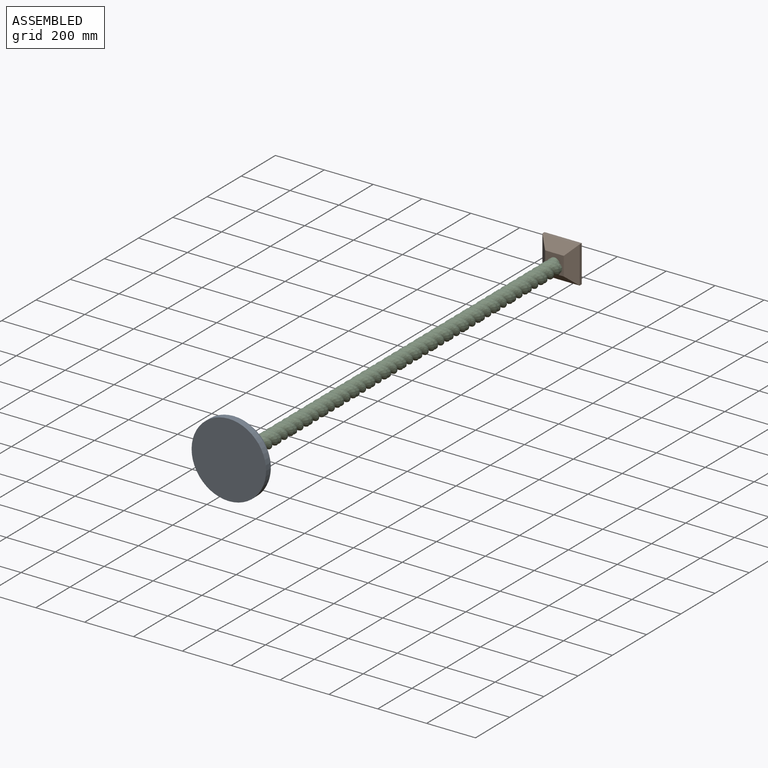
[diagram: assembled view]
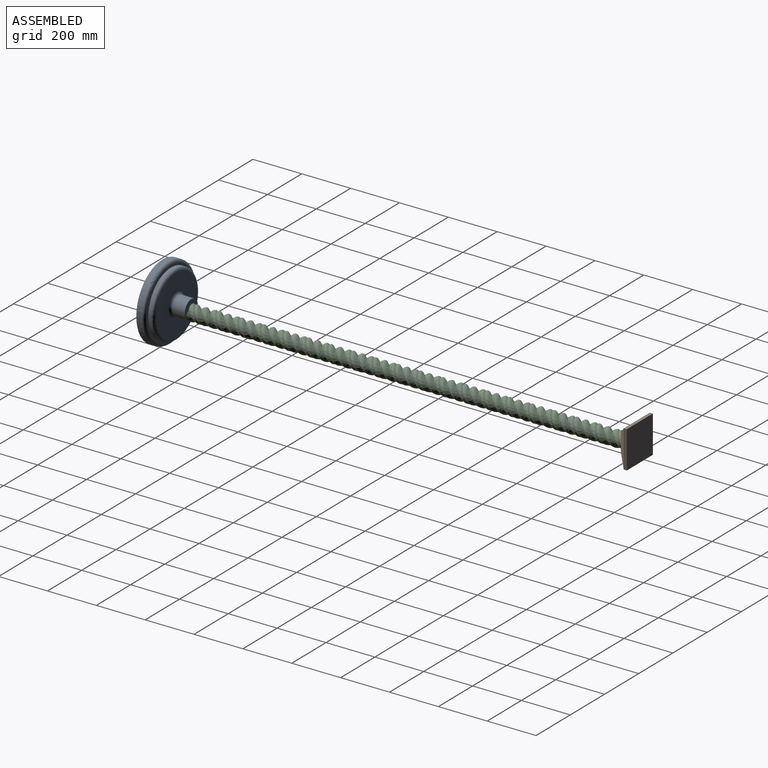
[diagram: assembled view, second angle]
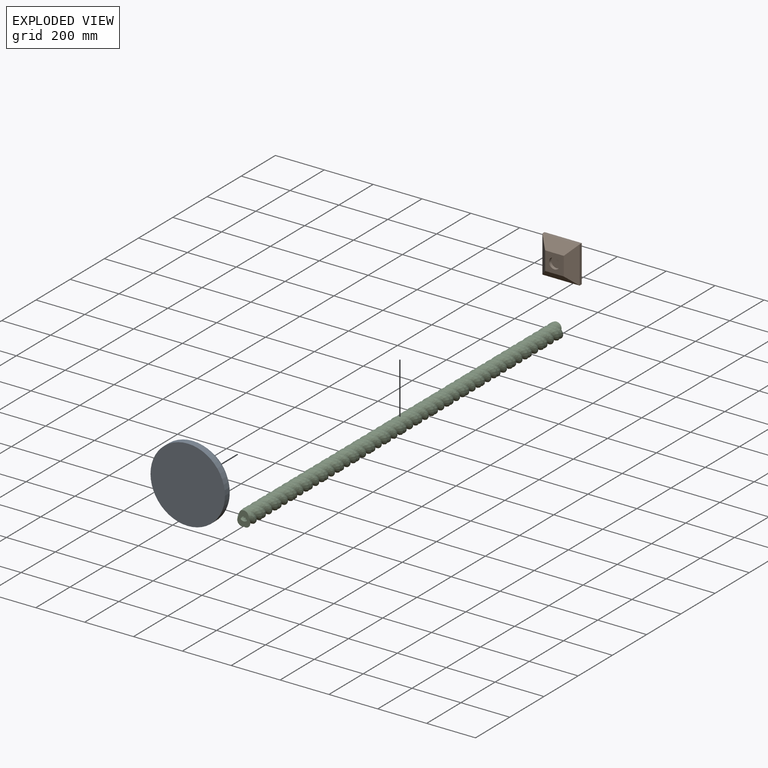
[diagram: exploded view]
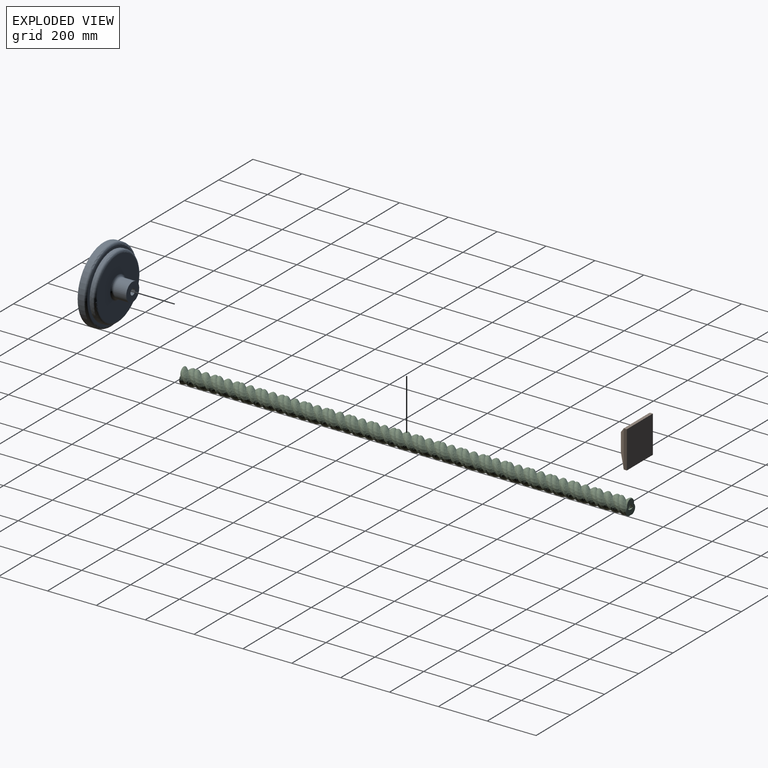
[diagram: exploded view, second angle]
ASSEMBLY  parts=3 mates=3
PART A: 12 faces, bbox 329.9x329.9x118.7 mm
  f0: plane 304.8x304.8mm, normal (0,0,-1), area 72965.9mm2, adj f6
  f1: plane 76.2x76.2mm, normal (0,0,1), area 4053.7mm2, adj f2,f10
  f2: cylinder r=38.1mm len=76.2mm, axis (0,0,1), area 12026.4mm2, adj f1,f7
  f3: plane 244.04x244.04mm, normal (0,0,1), area 39459.5mm2, adj f7,f8
  f4: cylinder r=132.18mm len=264.36mm, axis (0,0,1), area 11213.8mm2, adj f5,f8
  f5: plane 284.48x284.48mm, normal (0,0,1), area 8671.2mm2, adj f4,f9
  f6: cylinder r=152.4mm len=304.8mm, axis (0,0,1), area 23452mm2, adj f0,f9
  f7: torus R=48.26mm, axis (0,0,-1), area 4190.7mm2, adj f2,f3
  f8: torus R=122.02mm, axis (0,0,-1), area 12884.4mm2, adj f3,f4
  f9: torus R=142.24mm, axis (0,0,-1), area 14911.7mm2, adj f5,f6
  f10: cylinder r=12.7mm len=76.2mm, axis (0,0,1), area 6080.5mm2, adj f1,f11
  f11: plane 25.4x25.4mm, normal (0,0,1), area 506.7mm2, adj f10
PART B: 12 faces, bbox 152.4x50.8x152.4 mm
  f0: plane 152.4x12.7mm, normal (-1,0,0), area 1935.5mm2, adj f1,f3,f5,f7
  f1: plane 152.4x12.7mm, normal (0,0,-1), area 1935.5mm2, adj f0,f2,f5,f9
  f2: plane 152.4x12.7mm, normal (1,0,0), area 1935.5mm2, adj f1,f3,f5,f8
  f3: plane 152.4x12.7mm, normal (0,0,1), area 1935.5mm2, adj f0,f2,f5,f6
  f4: plane 76.2x76.2mm, normal (0,-1,0), area 4254.6mm2, adj f6,f7,f8,f9,f10
  f5: plane 152.4x152.4mm, normal (0,1,0), area 23225.8mm2, adj f0,f1,f2,f3
  f6: plane 152.4x38.1mm, normal (0,-0.71,0.71), area 6158.7mm2, adj f3,f4,f7,f8
  f7: plane 152.4x38.1mm, normal (-0.71,-0.71,0), area 6158.7mm2, adj f0,f4,f6,f9
  f8: plane 152.4x38.1mm, normal (0.71,-0.71,0), area 6158.7mm2, adj f2,f4,f6,f9
  f9: plane 152.4x38.1mm, normal (0,-0.71,-0.71), area 6158.7mm2, adj f1,f4,f7,f8
  f10: cylinder r=22.23mm len=44.45mm, axis (0,-1,0), area 1773.5mm2, adj f4,f11
  f11: plane 44.45x44.45mm, normal (0,-1,0), area 1551.8mm2, adj f10
PART C: 8 faces, bbox 95.6x1828.8x95.6 mm
  f0: bspline ~1828.8x95.59mm, area 115975.9mm2, adj f1,f2,f3,f4
  f1: bspline ~1828.8x70.33mm, area 157749.7mm2, adj f0,f2,f3,f4
  f2: bspline ~1828.8x95.59mm, area 115975.9mm2, adj f0,f1,f3,f4
  f3: plane 61.46x53.67mm, normal (0,1,0), area 2204.2mm2, adj f0,f1,f2,f5,f6,f7
  f4: plane 61.46x53.67mm, normal (0,-1,0), area 2204.2mm2, adj f0,f1,f2,f5,f6,f7
  f5: bspline ~1828.8x27.84mm, area 37657.9mm2, adj f3,f4,f6,f7
  f6: bspline ~1828.8x27.84mm, area 37657.9mm2, adj f3,f4,f5,f7
  f7: bspline ~1828.8x27.84mm, area 54354.8mm2, adj f3,f4,f5,f6
PLACE A rot(axis=(-0.58,0.58,0.58),120deg) t=(-156.4,-619.39,-27.31)mm
PLACE B t=(-232.6,1335.1,-103.51)mm
PLACE C t=(-156.4,1297,-38.74)mm
MATE fastened B.f10 <-> C.f3  axis (0,-1,0) through (-156.4,1297,-27.31)mm
MATE cylindrical C.f4 <-> A.f10  axis (0,-1,0) through (-156.4,-531.8,-27.31)mm
MATE cylindrical C.f3 <-> B.f10  axis (0,1,0) through (-156.4,1297,-27.31)mm
